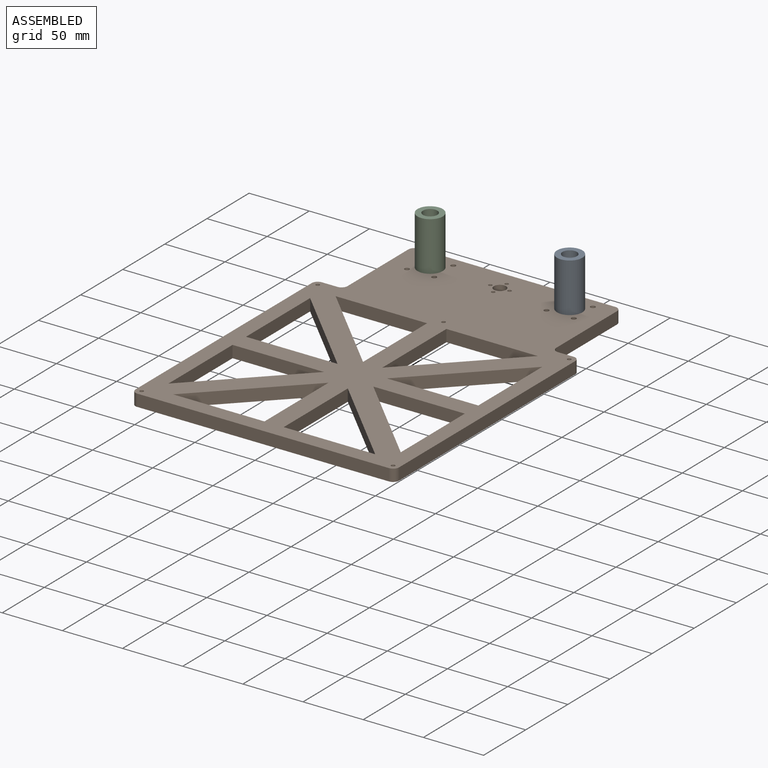
[diagram: assembled view]
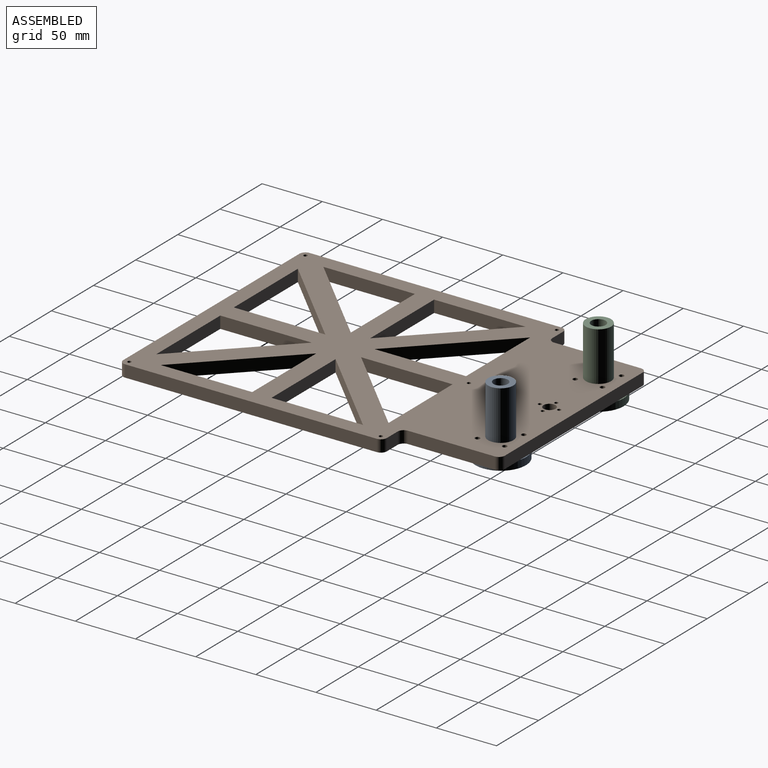
[diagram: assembled view, second angle]
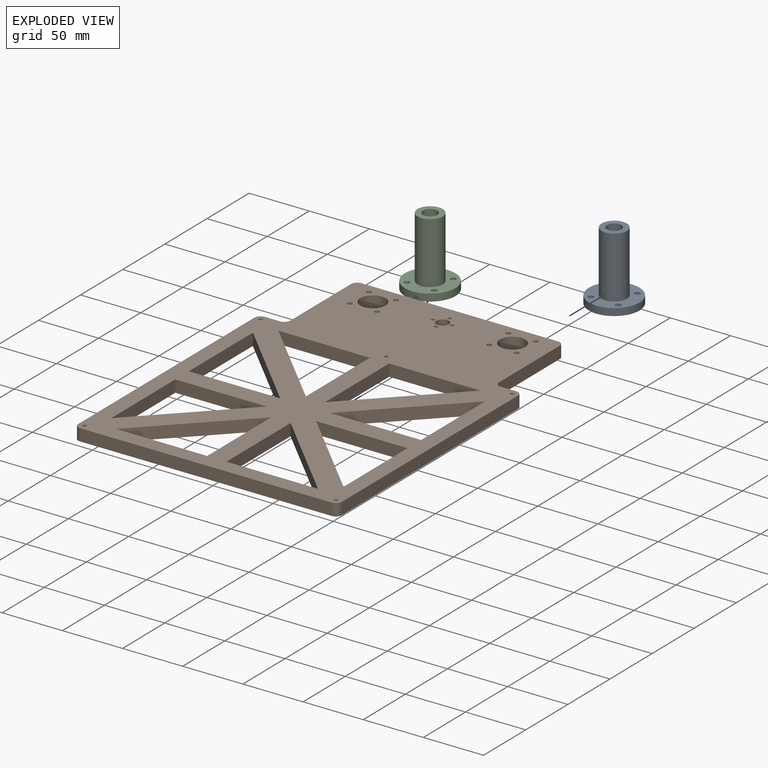
[diagram: exploded view]
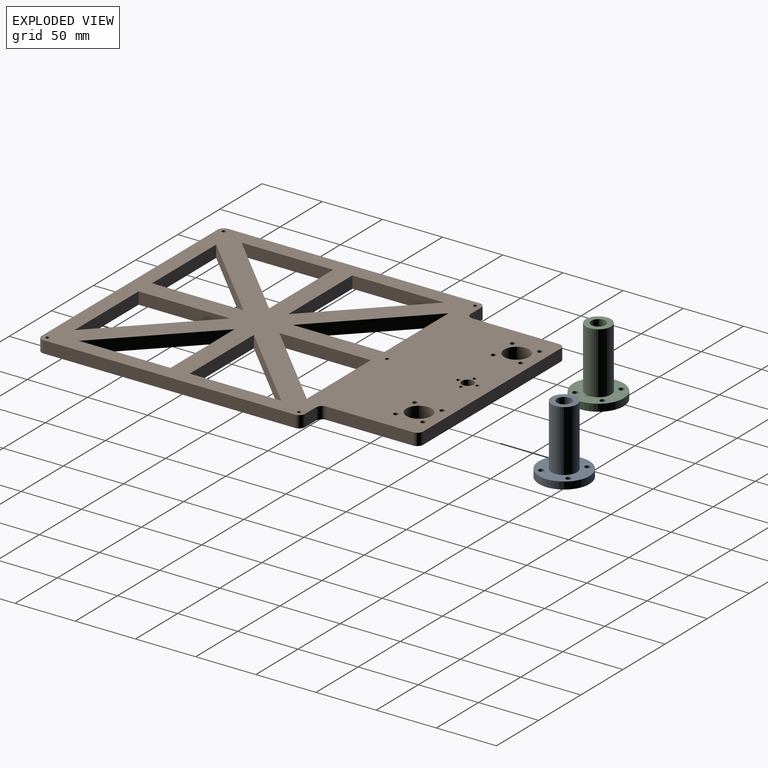
[diagram: exploded view, second angle]
ASSEMBLY  parts=3 mates=2
PART A: 10 faces, bbox 42x42x57 mm
  f0: cylinder r=6mm len=57mm, axis (0,0,-1), area 2148.8mm2, adj f2,f3
  f1: cylinder r=10.5mm len=51mm, axis (0,0,-1), area 3364.6mm2, adj f2,f9
  f2: plane 21x21mm, normal (0,0,1), area 233.3mm2, adj f0,f1
  f3: plane 42x42mm, normal (0,0,-1), area 1208.7mm2, adj f0,f4,f5,f6,f7,f8
  f4: cylinder r=2.25mm len=6mm, axis (0,0,-1), area 84.8mm2, adj f3,f9
  f5: cylinder r=2.25mm len=6mm, axis (0,0,-1), area 84.8mm2, adj f3,f9
  f6: cylinder r=2.25mm len=6mm, axis (0,0,-1), area 84.8mm2, adj f3,f9
  f7: cylinder r=2.25mm len=6mm, axis (0,0,-1), area 84.8mm2, adj f3,f9
  f8: cylinder r=21mm len=42mm, axis (0,0,-1), area 791.7mm2, adj f3,f9
  f9: plane 42x42mm, normal (0,0,1), area 975.5mm2, adj f1,f4,f5,f6,f7,f8
PART B: 62 faces, bbox 219x301.1x10 mm
  f0: plane 76.01x10mm, normal (-1,0,0), area 760.1mm2, adj f1,f36,f60,f61
  f1: plane 76.01x10mm, normal (0,1,0), area 760.1mm2, adj f0,f36,f60,f61
  f2: plane 76.01x10mm, normal (0,-1,0), area 760.1mm2, adj f3,f37,f60,f61
  f3: plane 76.01x76.01mm, normal (-0.71,0.71,0), area 1074.9mm2, adj f2,f37,f60,f61
  f4: plane 76.01x10mm, normal (1,0,0), area 760.1mm2, adj f5,f38,f60,f61
  f5: plane 76.01x76.01mm, normal (-0.71,-0.71,0), area 1074.9mm2, adj f4,f38,f60,f61
  f6: plane 76.01x10mm, normal (0,-1,0), area 760.1mm2, adj f7,f39,f60,f61
  f7: plane 76.01x10mm, normal (-1,0,0), area 760.1mm2, adj f6,f39,f60,f61
  f8: plane 209x10mm, normal (1,0,0), area 2090mm2, adj f9,f40,f60,f61
  f9: cylinder r=5mm len=10mm, axis (0,0,-1), area 78.5mm2, adj f8,f10,f60,f61
  f10: plane 12.8x10mm, normal (0,1,0), area 128mm2, adj f9,f11,f60,f61
  f11: cylinder r=5mm len=10mm, axis (0,0,-1), area 78.5mm2, adj f10,f12,f60,f61
  f12: plane 72.1x10mm, normal (1,0,0), area 721mm2, adj f11,f13,f60,f61
  f13: cylinder r=5mm len=10mm, axis (0,0,-1), area 78.5mm2, adj f12,f14,f60,f61
  f14: plane 163.4x10mm, normal (0,1,0), area 1634mm2, adj f13,f15,f60,f61
  f15: cylinder r=5mm len=10mm, axis (0,0,-1), area 78.5mm2, adj f14,f16,f60,f61
  f16: plane 72.1x10mm, normal (-1,0,0), area 721mm2, adj f15,f17,f60,f61
  f17: cylinder r=5mm len=10mm, axis (0,0,-1), area 78.5mm2, adj f16,f18,f60,f61
  f18: plane 12.8x10mm, normal (0,1,0), area 128mm2, adj f17,f19,f60,f61
  f19: cylinder r=5mm len=10mm, axis (0,0,-1), area 78.5mm2, adj f18,f20,f60,f61
  f20: plane 209x10mm, normal (-1,0,0), area 2090mm2, adj f19,f21,f60,f61
  f21: cylinder r=5mm len=10mm, axis (0,0,-1), area 78.5mm2, adj f20,f22,f60,f61
  f22: plane 209x10mm, normal (0,-1,0), area 2090mm2, adj f21,f40,f60,f61
  f23: plane 76.01x76.01mm, normal (-0.71,-0.71,0), area 1074.9mm2, adj f24,f41,f60,f61
  f24: plane 76.01x10mm, normal (0,1,0), area 760.1mm2, adj f23,f41,f60,f61
  f25: plane 76.01x10mm, normal (0,-1,0), area 760.1mm2, adj f26,f42,f60,f61
  f26: plane 76.01x76.01mm, normal (-0.71,0.71,0), area 1074.9mm2, adj f25,f42,f60,f61
  f27: plane 76.01x10mm, normal (0,1,0), area 760.1mm2, adj f28,f43,f60,f61
  f28: plane 76.01x76.01mm, normal (0.71,-0.71,0), area 1074.9mm2, adj f27,f43,f60,f61
  f29: plane 76.01x76.01mm, normal (0.71,0.71,0), area 1074.9mm2, adj f30,f44,f60,f61
  f30: plane 76.01x10mm, normal (0,-1,0), area 760.1mm2, adj f29,f44,f60,f61
  f31: cylinder r=5.1mm len=10.2mm, axis (0,0,-1), area 320.4mm2, adj f60,f61
  f32: cylinder r=1.55mm len=10mm, axis (0,0,-1), area 97.4mm2, adj f60,f61
  f33: cylinder r=1.55mm len=10mm, axis (0,0,-1), area 97.4mm2, adj f60,f61
  f34: cylinder r=10.5mm len=21mm, axis (0,0,-1), area 659.7mm2, adj f60,f61
  f35: cylinder r=1.5mm len=10mm, axis (0,0,-1), area 94.2mm2, adj f60,f61
  f36: plane 76.01x76.01mm, normal (0.71,-0.71,0), area 1074.9mm2, adj f0,f1,f60,f61
  f37: plane 76.01x10mm, normal (1,0,0), area 760.1mm2, adj f2,f3,f60,f61
  f38: plane 76.01x10mm, normal (0,1,0), area 760.1mm2, adj f4,f5,f60,f61
  f39: plane 76.01x76.01mm, normal (0.71,0.71,0), area 1074.9mm2, adj f6,f7,f60,f61
  f40: cylinder r=5mm len=10mm, axis (0,0,-1), area 78.5mm2, adj f8,f22,f60,f61
  f41: plane 76.01x10mm, normal (1,0,0), area 760.1mm2, adj f23,f24,f60,f61
  f42: plane 76.01x10mm, normal (1,0,0), area 760.1mm2, adj f25,f26,f60,f61
  f43: plane 76.01x10mm, normal (-1,0,0), area 760.1mm2, adj f27,f28,f60,f61
  f44: plane 76.01x10mm, normal (-1,0,0), area 760.1mm2, adj f29,f30,f60,f61
  f45: cylinder r=1.5mm len=10mm, axis (0,0,-1), area 94.2mm2, adj f60,f61
  f46: cylinder r=1.55mm len=10mm, axis (0,0,-1), area 97.4mm2, adj f60,f61
  f47: cylinder r=1.55mm len=10mm, axis (0,0,-1), area 97.4mm2, adj f60,f61
  f48: cylinder r=10.5mm len=21mm, axis (0,0,-1), area 659.7mm2, adj f60,f61
  f49: cylinder r=1.5mm len=10mm, axis (0,0,-1), area 94.2mm2, adj f60,f61
  f50: cylinder r=2mm len=10mm, axis (0,0,-1), area 125.7mm2, adj f60,f61
  f51: cylinder r=2mm len=10mm, axis (0,0,-1), area 125.7mm2, adj f60,f61
  f52: cylinder r=2mm len=10mm, axis (0,0,-1), area 125.7mm2, adj f60,f61
  f53: cylinder r=2mm len=10mm, axis (0,0,-1), area 125.7mm2, adj f60,f61
  f54: cylinder r=2mm len=10mm, axis (0,0,-1), area 125.7mm2, adj f60,f61
  f55: cylinder r=2mm len=10mm, axis (0,0,-1), area 125.7mm2, adj f60,f61
  f56: cylinder r=2mm len=10mm, axis (0,0,-1), area 125.7mm2, adj f60,f61
  f57: cylinder r=2mm len=10mm, axis (0,0,-1), area 125.7mm2, adj f60,f61
  f58: cylinder r=1.55mm len=10mm, axis (0,0,-1), area 97.4mm2, adj f60,f61
  f59: cylinder r=1.5mm len=10mm, axis (0,0,-1), area 94.2mm2, adj f60,f61
  f60: plane 301.1x219mm, normal (0,0,1), area 38127.4mm2, adj f0,f1,f2,f3,f4,f5,f6,f7
  f61: plane 301.1x219mm, normal (0,0,-1), area 38127.4mm2, adj f0,f1,f2,f3,f4,f5,f6,f7
PART C: same geometry as A
PLACE A t=(50.9,118.83,-8.74)mm fixed
PLACE B t=(-16.99,-7.81,-2.74)mm
PLACE C t=(-65.1,118.83,-8.74)mm fixed
MATE slider B.f48 <-> C.f0  axis (0,0,-1) through (-74.99,122.14,-2.74)mm
MATE slider B.f34 <-> A.f0  axis (0,0,-1) through (41.01,122.14,-2.74)mm
